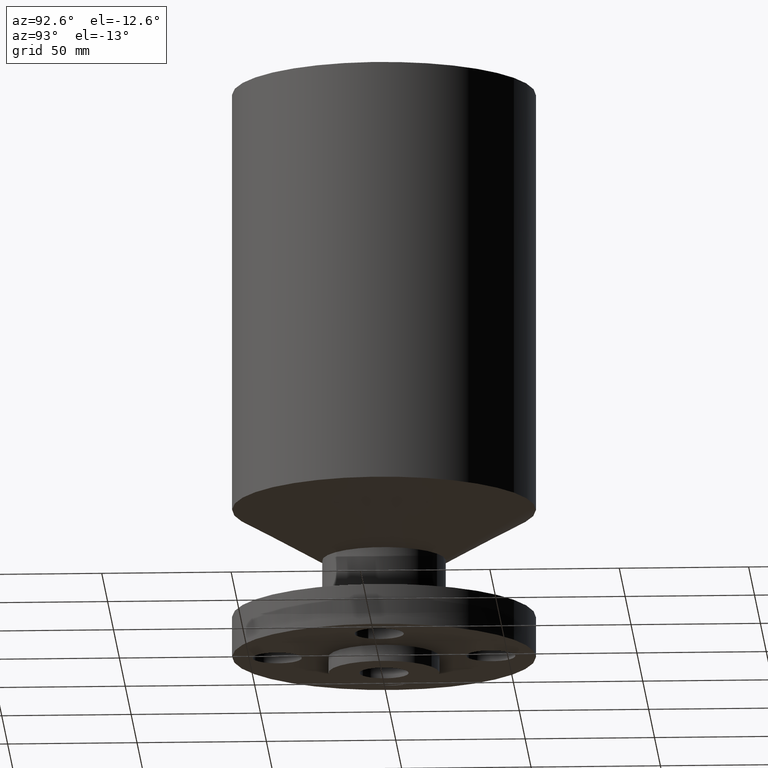
[diagram: clean part render]
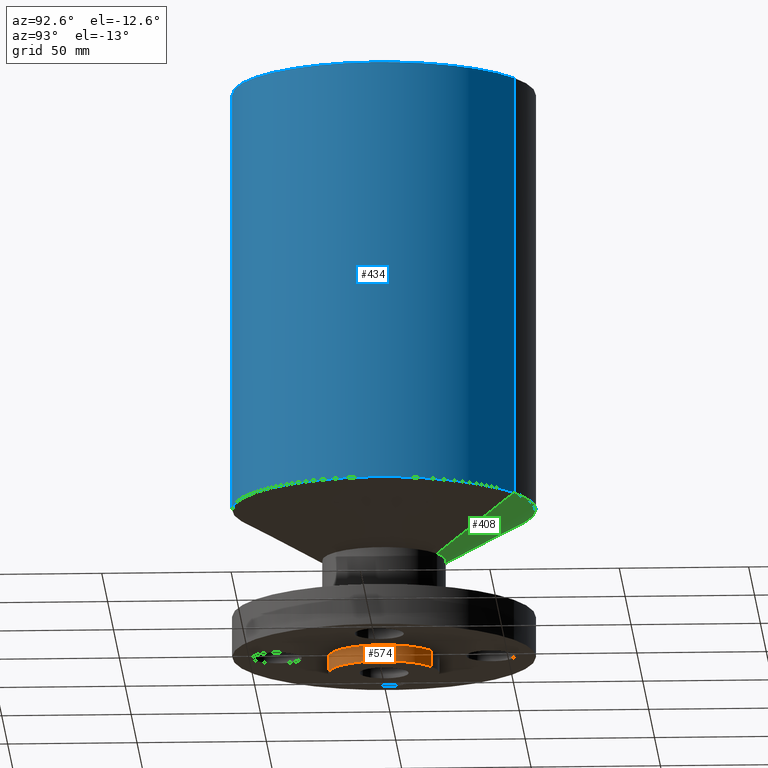
[diagram: same view with three faces highlighted in distinct colors, each labeled with its STEP entity id]
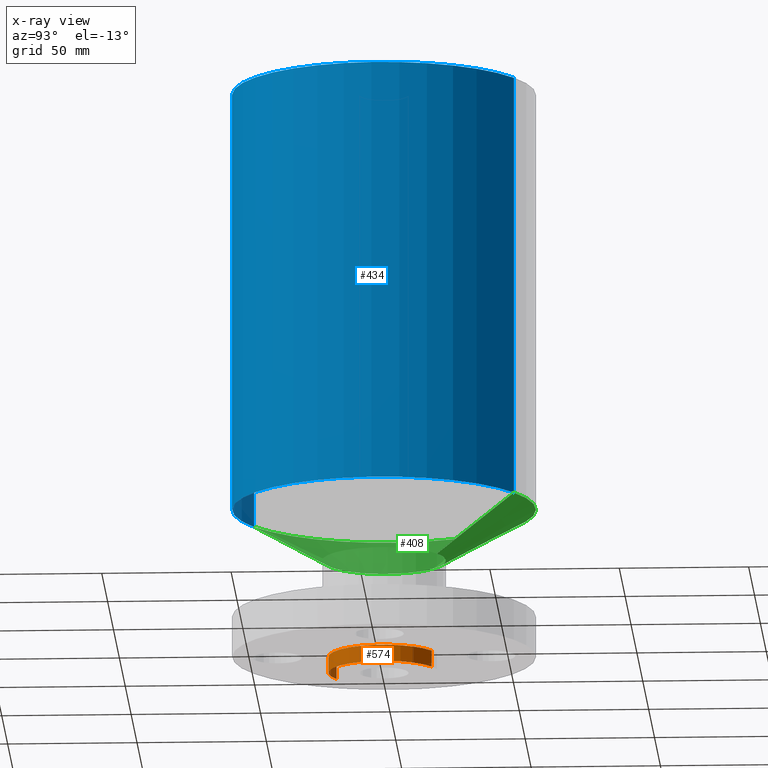
[diagram: x-ray of the same camera — body ghosted, the three highlighted faces saturated]
A machine part, auxiliary view with three faces highlighted in distinct colors.
The next image is the same camera in x-ray (body ghosted, the three faces saturated) — at least one of them is partly hidden behind the body in this view.
Their STEP definitions:

[orange] entity #574 — the highlighted cylindrical surface (partial cylindrical patch) has radius 21.463 mm, axis along (0, 0, -1).
#109=AXIS2_PLACEMENT_3D('Circle Axis2P3D',#107,#108,$) ;
#534=AXIS2_PLACEMENT_3D('Circle Axis2P3D',#532,#533,$) ;
#549=AXIS2_PLACEMENT_3D('Cylinder Axis2P3D',#546,#547,#548) ;
#107=CARTESIAN_POINT('Axis2P3D Location',(0.,0.,0.)) ;
#111=CARTESIAN_POINT('Vertex',(0.405114580122,0.7415572648,0.)) ;
#113=CARTESIAN_POINT('Vertex',(-0.405114580122,-0.7415572648,0.)) ;
#527=CARTESIAN_POINT('Vertex',(-0.405114580122,-0.7415572648,-0.250000000001)) ;
#529=CARTESIAN_POINT('Vertex',(0.405114580122,0.7415572648,-0.250000000001)) ;
#532=CARTESIAN_POINT('Axis2P3D Location',(0.,0.,-0.250000000001)) ;
#546=CARTESIAN_POINT('Axis2P3D Location',(0.,0.,4.25000000002)) ;
#551=CARTESIAN_POINT('Line Origine',(-0.405114580122,-0.7415572648,-0.125000000001)) ;
#556=CARTESIAN_POINT('Line Origine',(0.405114580122,0.7415572648,-0.125000000001)) ;
#108=DIRECTION('Axis2P3D Direction',(0.,0.,-0.0393700787402)) ;
#533=DIRECTION('Axis2P3D Direction',(0.,0.,-0.0393700787402)) ;
#547=DIRECTION('Axis2P3D Direction',(0.,0.,-0.0393700787402)) ;
#548=DIRECTION('Axis2P3D XDirection',(0.0188750212049,0.0345504945626,0.)) ;
#552=DIRECTION('Vector Direction',(0.,0.,-0.0393700787402)) ;
#557=DIRECTION('Vector Direction',(0.,0.,-0.0393700787402)) ;
#553=VECTOR('Line Direction',#552,0.0393700787402) ;
#558=VECTOR('Line Direction',#557,0.0393700787402) ;
#569=ORIENTED_EDGE('',*,*,#536,.F.) ;
#570=ORIENTED_EDGE('',*,*,#560,.T.) ;
#571=ORIENTED_EDGE('',*,*,#115,.T.) ;
#572=ORIENTED_EDGE('',*,*,#555,.F.) ;
#574=ADVANCED_FACE('PartBody',(#573),#550,.T.) ;
#110=CIRCLE('generated circle',#109,0.845000000003) ;
#535=CIRCLE('generated circle',#534,0.845000000003) ;
#550=CYLINDRICAL_SURFACE('generated cylinder',#549,0.845000000003) ;
#115=EDGE_CURVE('',#112,#114,#110,.T.) ;
#536=EDGE_CURVE('',#530,#528,#535,.T.) ;
#555=EDGE_CURVE('',#528,#114,#554,.F.) ;
#560=EDGE_CURVE('',#530,#112,#559,.F.) ;
#568=EDGE_LOOP('',(#569,#570,#571,#572)) ;
#573=FACE_OUTER_BOUND('',#568,.T.) ;
#554=LINE('Line',#551,#553) ;
#559=LINE('Line',#556,#558) ;
#112=VERTEX_POINT('',#111) ;
#114=VERTEX_POINT('',#113) ;
#528=VERTEX_POINT('',#527) ;
#530=VERTEX_POINT('',#529) ;

[blue] entity #434 — the highlighted cylindrical surface (partial cylindrical patch) has radius 58.674 mm, axis along (0, 0, -1).
#183=AXIS2_PLACEMENT_3D('Cylinder Axis2P3D',#180,#181,#182) ;
#380=AXIS2_PLACEMENT_3D('Circle Axis2P3D',#378,#379,$) ;
#418=AXIS2_PLACEMENT_3D('Circle Axis2P3D',#416,#417,$) ;
#180=CARTESIAN_POINT('Axis2P3D Location',(0.,0.,4.25000000002)) ;
#375=CARTESIAN_POINT('Vertex',(1.10747299418,2.02721571797,2.2909698688)) ;
#378=CARTESIAN_POINT('Axis2P3D Location',(0.,0.,2.2909698688)) ;
#382=CARTESIAN_POINT('Vertex',(-1.10747299418,-2.02721571797,2.2909698688)) ;
#409=CARTESIAN_POINT('Line Origine',(1.10747299418,2.02721571797,5.52048493442)) ;
#413=CARTESIAN_POINT('Vertex',(1.10747299418,2.02721571797,8.75000000003)) ;
#416=CARTESIAN_POINT('Axis2P3D Location',(0.,0.,8.75000000003)) ;
#420=CARTESIAN_POINT('Vertex',(-1.10747299418,-2.02721571797,8.75000000003)) ;
#423=CARTESIAN_POINT('Line Origine',(-1.10747299418,-2.02721571797,5.52048493442)) ;
#181=DIRECTION('Axis2P3D Direction',(0.,0.,-0.0393700787402)) ;
#182=DIRECTION('Axis2P3D XDirection',(-0.0188750212049,-0.0345504945626,0.)) ;
#379=DIRECTION('Axis2P3D Direction',(-0.,0.,0.0393700787402)) ;
#410=DIRECTION('Vector Direction',(0.,0.,-0.0393700787402)) ;
#417=DIRECTION('Axis2P3D Direction',(0.,0.,-0.0393700787402)) ;
#424=DIRECTION('Vector Direction',(0.,0.,-0.0393700787402)) ;
#411=VECTOR('Line Direction',#410,0.0393700787402) ;
#425=VECTOR('Line Direction',#424,0.0393700787402) ;
#429=ORIENTED_EDGE('',*,*,#384,.F.) ;
#430=ORIENTED_EDGE('',*,*,#415,.T.) ;
#431=ORIENTED_EDGE('',*,*,#422,.T.) ;
#432=ORIENTED_EDGE('',*,*,#427,.F.) ;
#434=ADVANCED_FACE('PartBody',(#433),#184,.T.) ;
#381=CIRCLE('generated circle',#380,2.31000000001) ;
#419=CIRCLE('generated circle',#418,2.31000000001) ;
#184=CYLINDRICAL_SURFACE('generated cylinder',#183,2.31000000001) ;
#384=EDGE_CURVE('',#376,#383,#381,.F.) ;
#415=EDGE_CURVE('',#376,#414,#412,.F.) ;
#422=EDGE_CURVE('',#414,#421,#419,.T.) ;
#427=EDGE_CURVE('',#383,#421,#426,.F.) ;
#428=EDGE_LOOP('',(#429,#430,#431,#432)) ;
#433=FACE_OUTER_BOUND('',#428,.T.) ;
#412=LINE('Line',#409,#411) ;
#426=LINE('Line',#423,#425) ;
#376=VERTEX_POINT('',#375) ;
#383=VERTEX_POINT('',#382) ;
#414=VERTEX_POINT('',#413) ;
#421=VERTEX_POINT('',#420) ;

[green] entity #408 — the highlighted conical surface has half-angle 60 deg.
#356=AXIS2_PLACEMENT_3D('Circle Axis2P3D',#354,#355,$) ;
#369=AXIS2_PLACEMENT_3D('Cone Axis2P3D',#366,#367,#368) ;
#399=AXIS2_PLACEMENT_3D('Circle Axis2P3D',#397,#398,$) ;
#332=CARTESIAN_POINT('Vertex',(0.45066000629,0.82492760818,1.50000000001)) ;
#339=CARTESIAN_POINT('Vertex',(-0.45066000629,-0.82492760818,1.50000000001)) ;
#354=CARTESIAN_POINT('Axis2P3D Location',(0.,0.,1.50000000001)) ;
#366=CARTESIAN_POINT('Axis2P3D Location',(0.,0.,1.50000000001)) ;
#371=CARTESIAN_POINT('Line Origine',(0.779066500235,1.42607166308,1.8954849344)) ;
#375=CARTESIAN_POINT('Vertex',(1.10747299418,2.02721571797,2.2909698688)) ;
#382=CARTESIAN_POINT('Vertex',(-1.10747299418,-2.02721571797,2.2909698688)) ;
#385=CARTESIAN_POINT('Line Origine',(-0.779066500235,-1.42607166308,1.8954849344)) ;
#397=CARTESIAN_POINT('Axis2P3D Location',(0.,0.,2.2909698688)) ;
#355=DIRECTION('Axis2P3D Direction',(0.,0.,-0.0393700787402)) ;
#367=DIRECTION('Axis2P3D Direction',(-0.,-0.,0.0393700787402)) ;
#368=DIRECTION('Axis2P3D XDirection',(0.0188750212049,0.0345504945626,0.)) ;
#372=DIRECTION('Vector Direction',(0.0163462478604,0.0299216060045,0.0196850393701)) ;
#386=DIRECTION('Vector Direction',(-0.0163462478604,-0.0299216060045,0.0196850393701)) ;
#398=DIRECTION('Axis2P3D Direction',(-0.,0.,0.0393700787402)) ;
#373=VECTOR('Line Direction',#372,0.0393700787402) ;
#387=VECTOR('Line Direction',#386,0.0393700787402) ;
#403=ORIENTED_EDGE('',*,*,#358,.F.) ;
#404=ORIENTED_EDGE('',*,*,#389,.T.) ;
#405=ORIENTED_EDGE('',*,*,#401,.T.) ;
#406=ORIENTED_EDGE('',*,*,#377,.F.) ;
#408=ADVANCED_FACE('PartBody',(#407),#370,.T.) ;
#357=CIRCLE('generated circle',#356,0.940000000004) ;
#400=CIRCLE('generated circle',#399,2.31000000001) ;
#370=CONICAL_SURFACE('Cone',#369,0.940000000004,1.0471975512) ;
#358=EDGE_CURVE('',#340,#333,#357,.T.) ;
#377=EDGE_CURVE('',#333,#376,#374,.T.) ;
#389=EDGE_CURVE('',#340,#383,#388,.T.) ;
#401=EDGE_CURVE('',#383,#376,#400,.F.) ;
#402=EDGE_LOOP('',(#403,#404,#405,#406)) ;
#407=FACE_OUTER_BOUND('',#402,.T.) ;
#374=LINE('Line',#371,#373) ;
#388=LINE('Line',#385,#387) ;
#333=VERTEX_POINT('',#332) ;
#340=VERTEX_POINT('',#339) ;
#376=VERTEX_POINT('',#375) ;
#383=VERTEX_POINT('',#382) ;